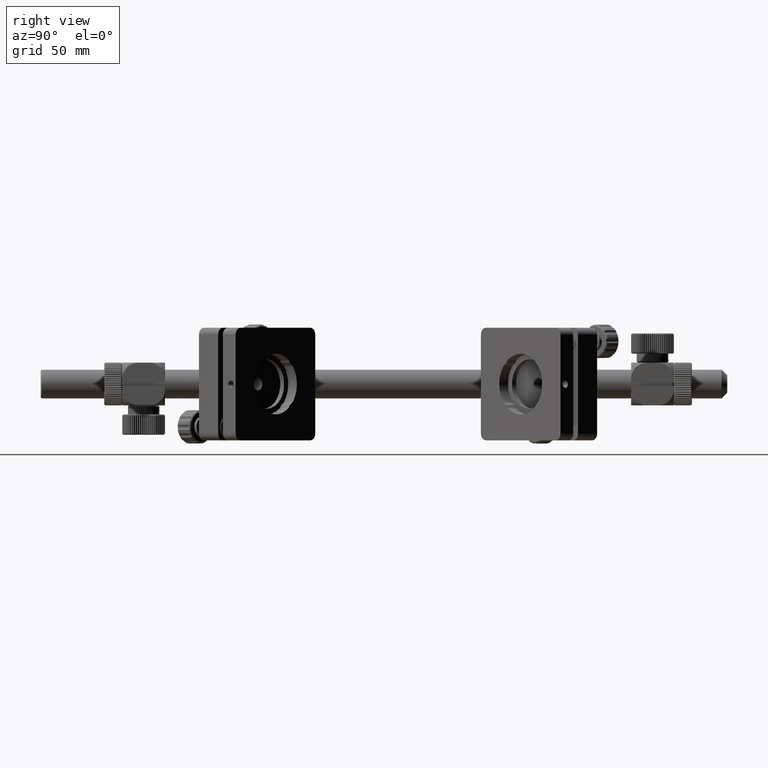
[diagram: clean part render]
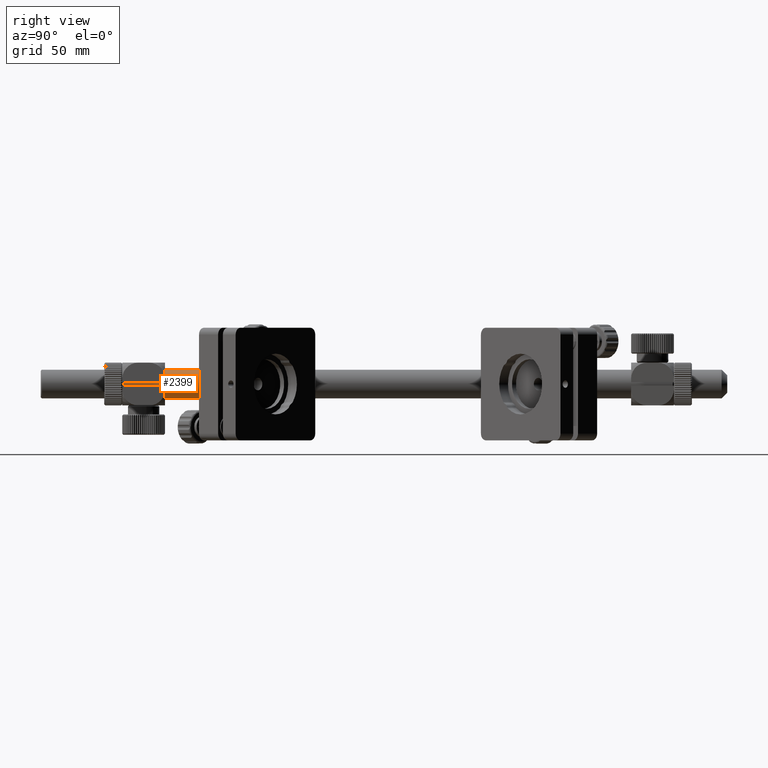
[diagram: same view with one face highlighted and labeled with its STEP entity id]
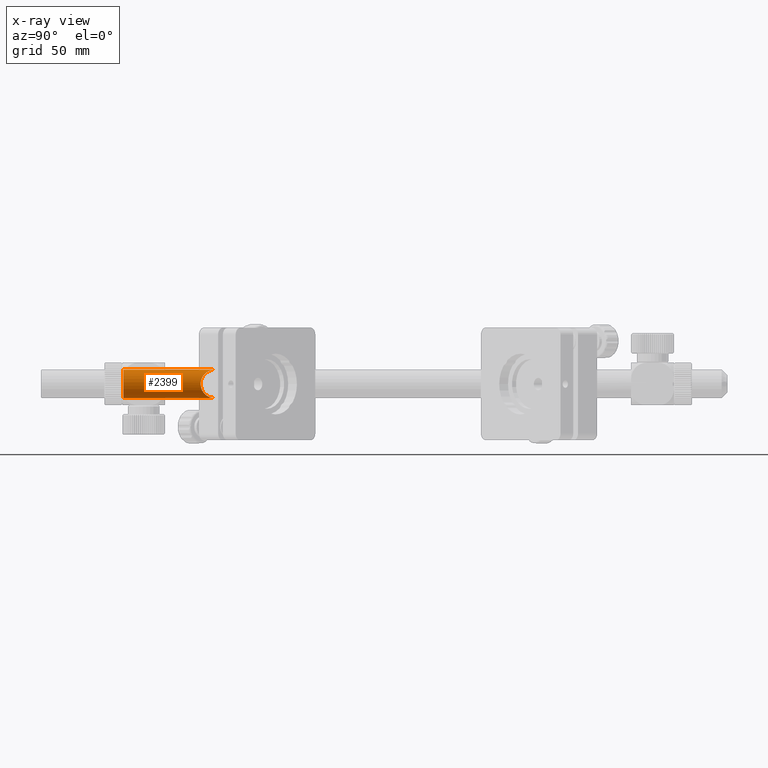
[diagram: x-ray of the same camera — body ghosted, the highlighted face saturated]
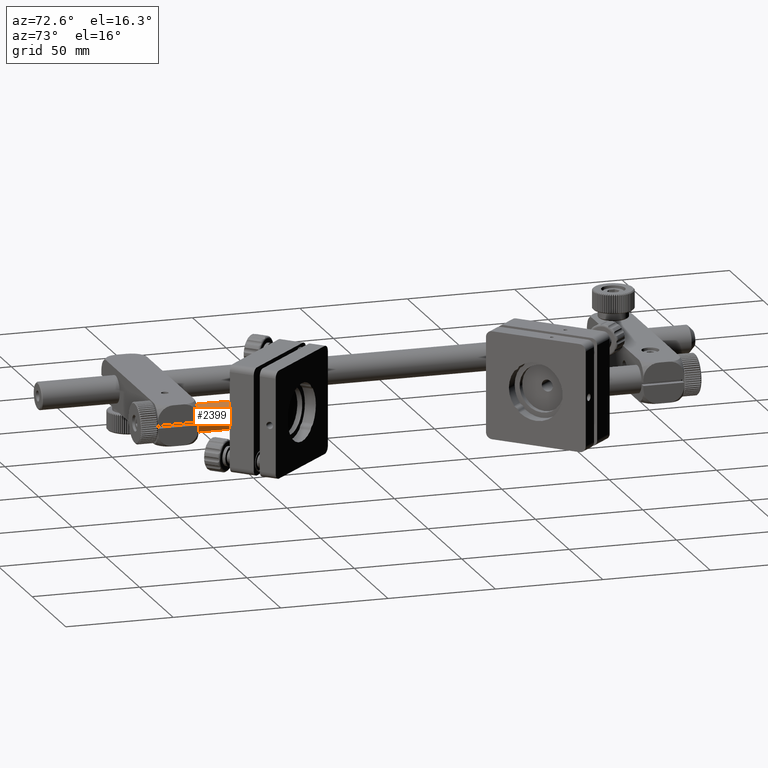
[diagram: same view with one face highlighted and labeled with its STEP entity id]
A machine part, right view. The second image highlights one B-rep face of the part: STEP entity #2399.
The next image is the same camera in x-ray: the body ghosted, the highlighted face saturated — about 0% of this face is hidden behind the body in this view.
A second angle (auxiliary view) of the same face is appended — the face is thin or edge-on in the first view.
In plain terms, the highlighted cylindrical surface (edge-blend (fillet) strip) has radius 6.35 mm, axis along (0, -1, -0).
Its self-contained STEP definition (entity closure, byte-faithful):
#1146 = DIRECTION ( 'NONE',  ( 1.143950844249055893E-17, -1.000000000000000000, -3.737730629080077330E-16 ) ) ;
#1478 = CARTESIAN_POINT ( 'NONE',  ( 53.99999999999964473, 92.62653311057125904, -6.350000000000066258 ) ) ;
#1764 = DIRECTION ( 'NONE',  ( 0.000000000000000000, 0.000000000000000000, 1.000000000000000000 ) ) ;
#2399 = ADVANCED_FACE ( 'NONE', ( #44893 ), #49384, .T. ) ;
#2834 = DIRECTION ( 'NONE',  ( 1.143950844249055893E-17, -1.000000000000000000, -3.737730629080077330E-16 ) ) ;
#7153 = CARTESIAN_POINT ( 'NONE',  ( 53.99999999999964473, 92.62653311057125904, -6.350000000000066258 ) ) ;
#8802 = LINE ( 'NONE', #28323, #18601 ) ;
#15220 = EDGE_CURVE ( 'NONE', #34978, #57014, #36956, .T. ) ;
#16144 = CARTESIAN_POINT ( 'NONE',  ( 53.99999999999964473, 92.62653311057124483, 6.349999999999922373 ) ) ;
#17393 = CARTESIAN_POINT ( 'NONE',  ( 53.99999999999964473, 51.97653311057131020, 6.349999999999912603 ) ) ;
#18601 = VECTOR ( 'NONE', #23833, 1000.000000000000000 ) ;
#21183 = ORIENTED_EDGE ( 'NONE', *, *, #54348, .F. ) ;
#23833 = DIRECTION ( 'NONE',  ( 1.143950844249055893E-17, -1.000000000000000000, -3.737730629080077330E-16 ) ) ;
#24352 = EDGE_CURVE ( 'NONE', #27714, #34978, #8802, .T. ) ;
#24980 = ORIENTED_EDGE ( 'NONE', *, *, #36654, .T. ) ;
#27714 = VERTEX_POINT ( 'NONE', #57689 ) ;
#28323 = CARTESIAN_POINT ( 'NONE',  ( 53.99999999999964473, 96.47653311057129599, 6.349999999999924150 ) ) ;
#30255 = ORIENTED_EDGE ( 'NONE', *, *, #15220, .T. ) ;
#34100 = VECTOR ( 'NONE', #2834, 1000.000000000000000 ) ;
#34978 = VERTEX_POINT ( 'NONE', #17393 ) ;
#36091 = AXIS2_PLACEMENT_3D ( 'NONE', #50005, #1146, #1764 ) ;
#36654 = EDGE_CURVE ( 'NONE', #62186, #27714, #42032, .T. ) ;
#36716 = LINE ( 'NONE', #50762, #34100 ) ;
#36956 = CIRCLE ( 'NONE', #37977, 6.349999999999994316 ) ;
#37977 = AXIS2_PLACEMENT_3D ( 'NONE', #59588, #59903, #54757 ) ;
#40475 = CARTESIAN_POINT ( 'NONE',  ( 66.69999999999954809, 79.92653311057121357, -6.350000000000040501 ) ) ;
#42032 =( BOUNDED_CURVE ( )  B_SPLINE_CURVE ( 3, ( #1478, #40475, #59949, #16144 ),
 .UNSPECIFIED., .F., .T. ) 
 B_SPLINE_CURVE_WITH_KNOTS ( ( 4, 4 ),
 ( 4.712388980384692339, 7.853981633974479237 ),
 .UNSPECIFIED. ) 
 CURVE ( )  GEOMETRIC_REPRESENTATION_ITEM ( )  RATIONAL_B_SPLINE_CURVE ( ( 1.000000000000000000, 0.3333333333333354798, 0.3333333333333354798, 1.000000000000000000 ) ) 
 REPRESENTATION_ITEM ( '' )  );
#44893 = FACE_OUTER_BOUND ( 'NONE', #61148, .T. ) ;
#49384 = CYLINDRICAL_SURFACE ( 'NONE', #36091, 6.349999999999994316 ) ;
#50005 = CARTESIAN_POINT ( 'NONE',  ( 53.99999999999964473, 96.47653311057129599, -7.059069242424123533E-14 ) ) ;
#50762 = CARTESIAN_POINT ( 'NONE',  ( 53.99999999999964473, 96.47653311057129599, -6.350000000000064482 ) ) ;
#51049 = ORIENTED_EDGE ( 'NONE', *, *, #24352, .T. ) ;
#54348 = EDGE_CURVE ( 'NONE', #62186, #57014, #36716, .T. ) ;
#54757 = DIRECTION ( 'NONE',  ( 0.000000000000000000, 0.000000000000000000, -1.000000000000000000 ) ) ;
#56122 = CARTESIAN_POINT ( 'NONE',  ( 53.99999999999964473, 51.97653311057131020, -6.350000000000087574 ) ) ;
#57014 = VERTEX_POINT ( 'NONE', #56122 ) ;
#57689 = CARTESIAN_POINT ( 'NONE',  ( 53.99999999999964473, 92.62653311057124483, 6.349999999999922373 ) ) ;
#59588 = CARTESIAN_POINT ( 'NONE',  ( 53.99999999999962341, 51.97653311057131020, -8.722359372364760085E-14 ) ) ;
#59903 = DIRECTION ( 'NONE',  ( -1.143950844249055739E-17, 1.000000000000000000, 3.737730629080076837E-16 ) ) ;
#59949 = CARTESIAN_POINT ( 'NONE',  ( 66.69999999999954809, 79.92653311057118515, 6.349999999999867306 ) ) ;
#61148 = EDGE_LOOP ( 'NONE', ( #21183, #24980, #51049, #30255 ) ) ;
#62186 = VERTEX_POINT ( 'NONE', #7153 ) ;